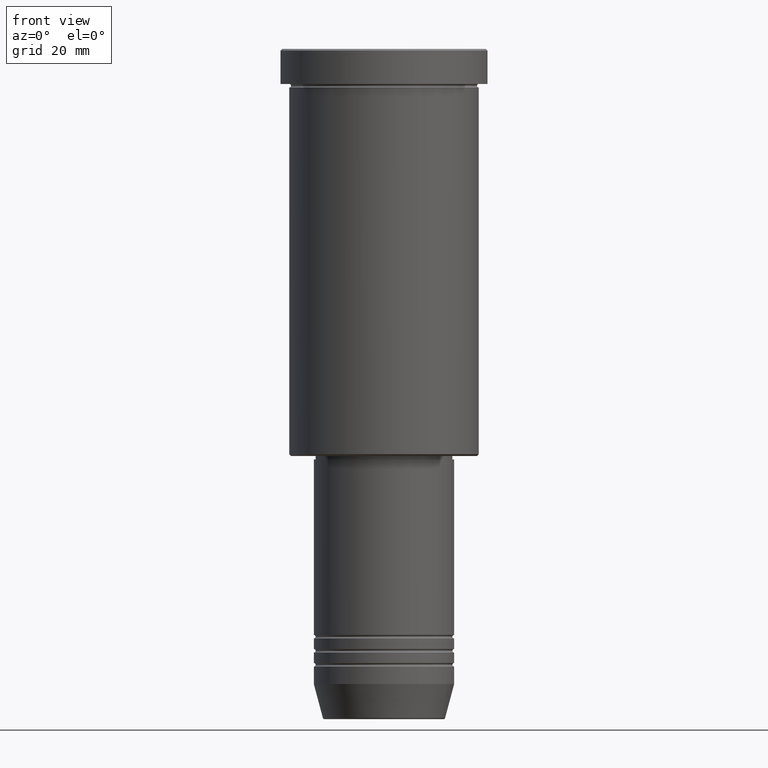
[diagram: clean part render]
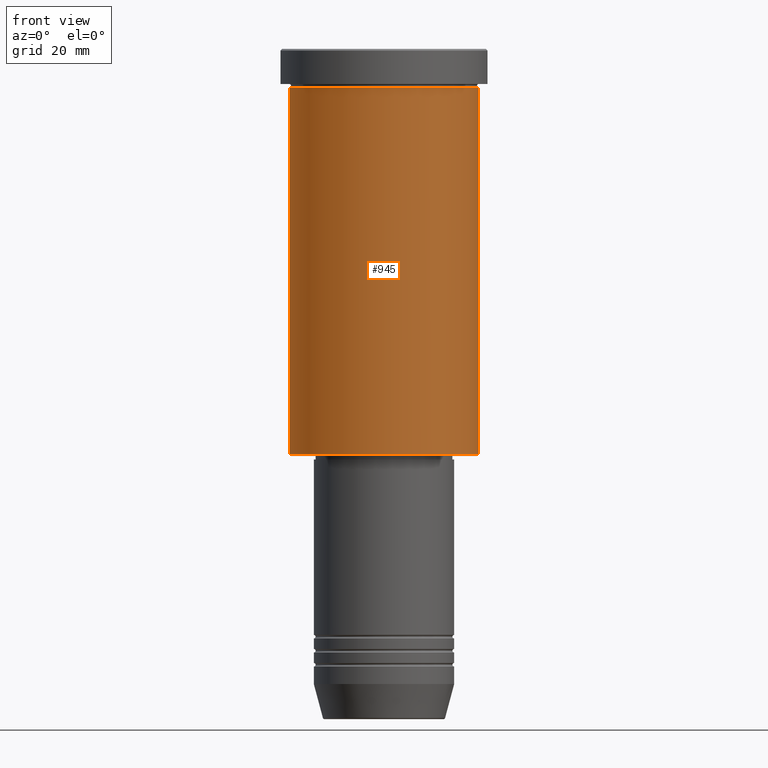
[diagram: same view with one face highlighted and labeled with its STEP entity id]
A machine part, front view. The second image highlights one B-rep face of the part: STEP entity #945.
In plain terms, the highlighted cylindrical surface (partial cylindrical patch) has radius 27 mm, axis along (-0, -0, 1).
Its self-contained STEP definition (entity closure, byte-faithful):
#16 = DIRECTION ( 'NONE',  ( -0.000000000000000000, -0.000000000000000000, 1.000000000000000000 ) ) ;
#39 = CARTESIAN_POINT ( 'NONE',  ( 27.00000000000000355, 0.000000000000000000, -10.99999999999999289 ) ) ;
#57 = VERTEX_POINT ( 'NONE', #958 ) ;
#254 = DIRECTION ( 'NONE',  ( -0.000000000000000000, -0.000000000000000000, 1.000000000000000000 ) ) ;
#270 = FACE_OUTER_BOUND ( 'NONE', #343, .T. ) ;
#308 = CARTESIAN_POINT ( 'NONE',  ( -27.00000000000000355, 3.306546357697854128E-15, -10.99999999999999289 ) ) ;
#343 = EDGE_LOOP ( 'NONE', ( #472, #465, #751, #829 ) ) ;
#354 = DIRECTION ( 'NONE',  ( -1.000000000000000000, 0.000000000000000000, 0.000000000000000000 ) ) ;
#368 = DIRECTION ( 'NONE',  ( 1.000000000000000000, 0.000000000000000000, 0.000000000000000000 ) ) ;
#409 = DIRECTION ( 'NONE',  ( -0.000000000000000000, -0.000000000000000000, 1.000000000000000000 ) ) ;
#428 = DIRECTION ( 'NONE',  ( -0.000000000000000000, -0.000000000000000000, 1.000000000000000000 ) ) ;
#457 = EDGE_CURVE ( 'NONE', #1038, #1034, #814, .T. ) ;
#458 = CYLINDRICAL_SURFACE ( 'NONE', #584, 27.00000000000000355 ) ;
#463 = VECTOR ( 'NONE', #254, 1000.000000000000000 ) ;
#465 = ORIENTED_EDGE ( 'NONE', *, *, #491, .T. ) ;
#472 = ORIENTED_EDGE ( 'NONE', *, *, #1104, .F. ) ;
#491 = EDGE_CURVE ( 'NONE', #662, #57, #1105, .T. ) ;
#509 = VECTOR ( 'NONE', #428, 1000.000000000000000 ) ;
#537 = CARTESIAN_POINT ( 'NONE',  ( 0.000000000000000000, 0.000000000000000000, -115.4999999999999716 ) ) ;
#567 = AXIS2_PLACEMENT_3D ( 'NONE', #537, #1095, #354 ) ;
#584 = AXIS2_PLACEMENT_3D ( 'NONE', #818, #16, #368 ) ;
#662 = VERTEX_POINT ( 'NONE', #742 ) ;
#742 = CARTESIAN_POINT ( 'NONE',  ( -27.00000000000000355, 3.306546357697854128E-15, -115.4999999999999716 ) ) ;
#751 = ORIENTED_EDGE ( 'NONE', *, *, #1135, .T. ) ;
#769 = DIRECTION ( 'NONE',  ( 1.000000000000000000, 0.000000000000000000, 0.000000000000000000 ) ) ;
#795 = LINE ( 'NONE', #808, #509 ) ;
#808 = CARTESIAN_POINT ( 'NONE',  ( -27.00000000000000355, 3.306546357697854128E-15, 0.000000000000000000 ) ) ;
#814 = CIRCLE ( 'NONE', #968, 27.00000000000000355 ) ;
#818 = CARTESIAN_POINT ( 'NONE',  ( 0.000000000000000000, 0.000000000000000000, 0.000000000000000000 ) ) ;
#829 = ORIENTED_EDGE ( 'NONE', *, *, #457, .F. ) ;
#864 = CARTESIAN_POINT ( 'NONE',  ( 0.000000000000000000, 0.000000000000000000, -10.99999999999999289 ) ) ;
#905 = CARTESIAN_POINT ( 'NONE',  ( 27.00000000000000355, 0.000000000000000000, 0.000000000000000000 ) ) ;
#945 = ADVANCED_FACE ( 'NONE', ( #270 ), #458, .T. ) ;
#958 = CARTESIAN_POINT ( 'NONE',  ( 27.00000000000000355, 0.000000000000000000, -115.4999999999999716 ) ) ;
#968 = AXIS2_PLACEMENT_3D ( 'NONE', #864, #409, #769 ) ;
#1034 = VERTEX_POINT ( 'NONE', #39 ) ;
#1038 = VERTEX_POINT ( 'NONE', #308 ) ;
#1084 = LINE ( 'NONE', #905, #463 ) ;
#1095 = DIRECTION ( 'NONE',  ( -0.000000000000000000, -0.000000000000000000, 1.000000000000000000 ) ) ;
#1104 = EDGE_CURVE ( 'NONE', #662, #1038, #795, .T. ) ;
#1105 = CIRCLE ( 'NONE', #567, 27.00000000000000355 ) ;
#1135 = EDGE_CURVE ( 'NONE', #57, #1034, #1084, .T. ) ;